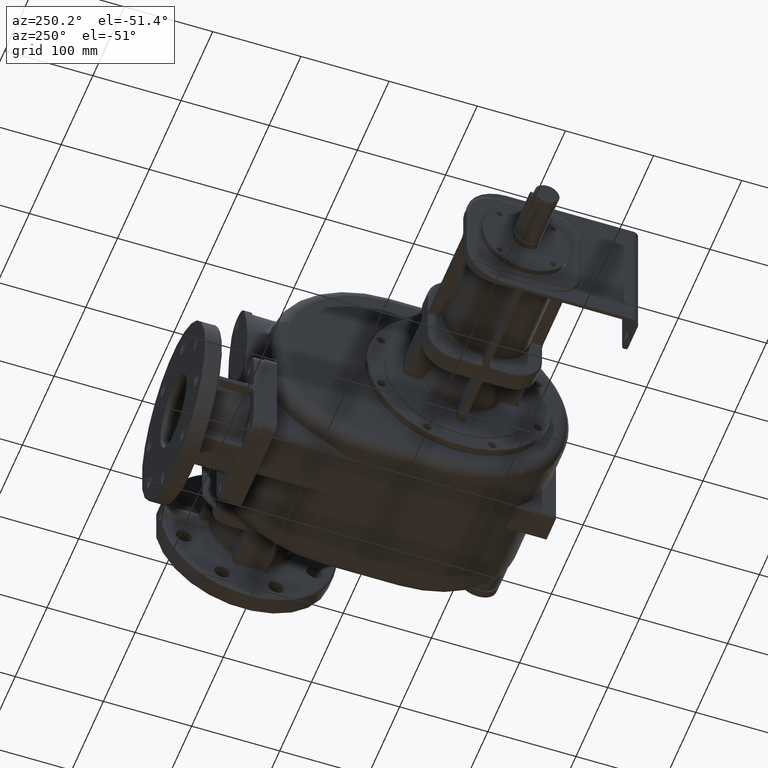
[diagram: clean part render]
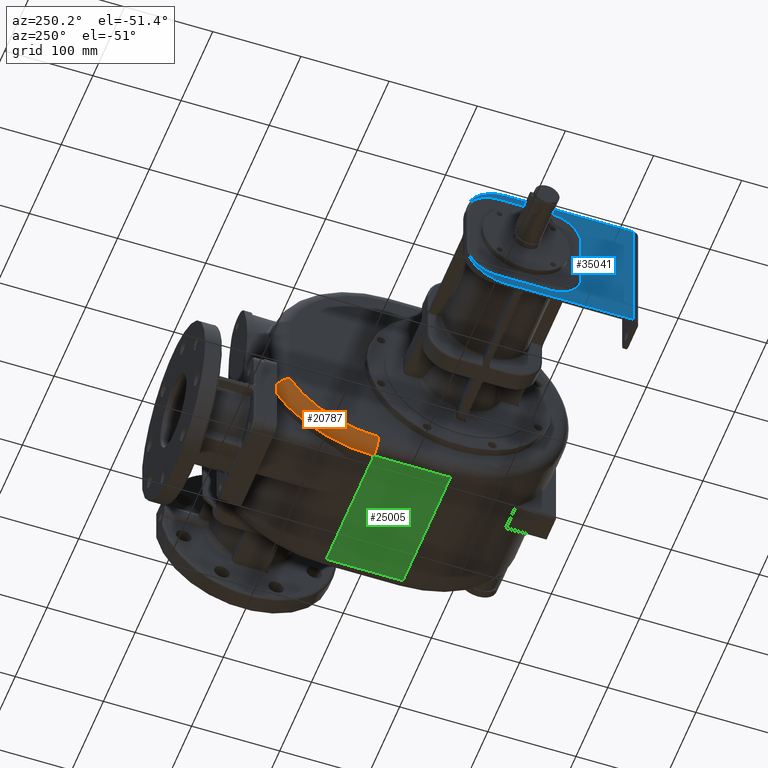
[diagram: same view with three faces highlighted in distinct colors, each labeled with its STEP entity id]
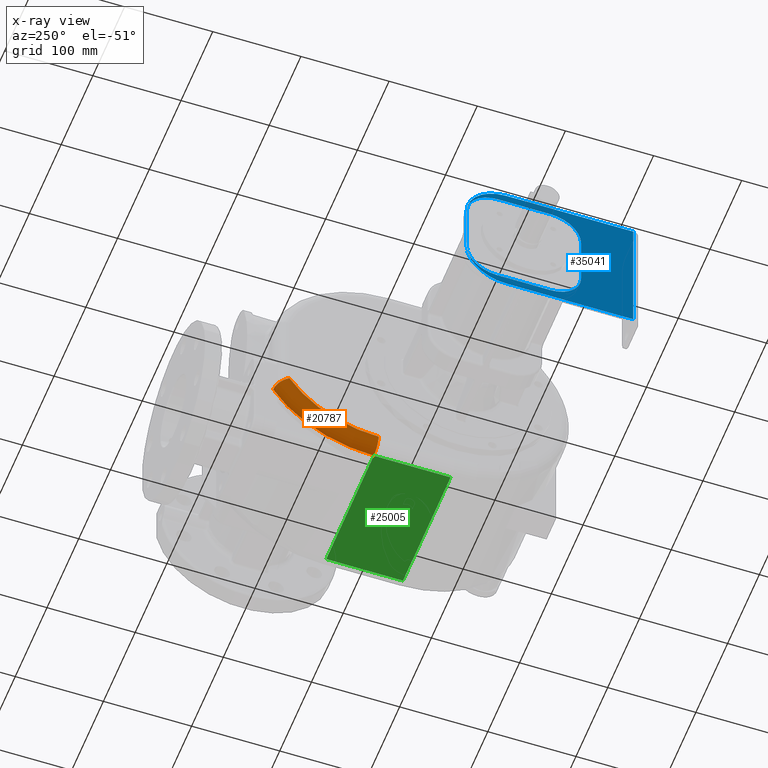
[diagram: x-ray of the same camera — body ghosted, the three highlighted faces saturated]
A machine part, auxiliary view with three faces highlighted in distinct colors.
The next image is the same camera in x-ray (body ghosted, the three faces saturated) — at least one of them is partly hidden behind the body in this view.
Their STEP definitions:

[orange] entity #20787 — the highlighted toroidal blend (fillet) surface has major radius 118 mm and minor (blend) radius 15 mm.
#3449=CARTESIAN_POINT('',(-5.5E1,2.210913863051E2,0.E0));
#3450=DIRECTION('',(-1.E0,0.E0,0.E0));
#3451=DIRECTION('',(0.E0,8.587492103451E-1,-5.123961297001E-1));
#3452=AXIS2_PLACEMENT_3D('',#3449,#3450,#3451);
#3961=CARTESIAN_POINT('',(-7.E1,3.220000000023E2,-6.116736602059E1));
#3962=CARTESIAN_POINT('',(-6.999990488858E1,3.221587981855E2,
-6.125106548358E1));
#3963=CARTESIAN_POINT('',(-6.999361504230E1,3.224741906862E2,
-6.142218686163E1));
#3964=CARTESIAN_POINT('',(-6.996474058901E1,3.229494904947E2,-6.167157147E1));
#3965=CARTESIAN_POINT('',(-6.991684965637E1,3.234219318471E2,
-6.192226006371E1));
#3966=CARTESIAN_POINT('',(-6.984995449886E1,3.238923147292E2,
-6.217151494755E1));
#3967=CARTESIAN_POINT('',(-6.976418426792E1,3.243598895304E2,
-6.241961932331E1));
#3968=CARTESIAN_POINT('',(-6.965964371186E1,3.248243360059E2,
-6.266603398503E1));
#3969=CARTESIAN_POINT('',(-6.953644660095E1,3.252852381668E2,
-6.291044305278E1));
#3970=CARTESIAN_POINT('',(-6.939472511065E1,3.257424574249E2,
-6.315194670540E1));
#3971=CARTESIAN_POINT('',(-6.923463253330E1,3.261952789085E2,
-6.339056456900E1));
#3972=CARTESIAN_POINT('',(-6.905632756985E1,3.266431084064E2,
-6.362616828107E1));
#3973=CARTESIAN_POINT('',(-6.886002922068E1,3.270852186567E2,
-6.385862427627E1));
#3974=CARTESIAN_POINT('',(-6.864601850963E1,3.275208764645E2,
-6.408769387655E1));
#3975=CARTESIAN_POINT('',(-6.841460988818E1,3.279492562497E2,
-6.431334273447E1));
#3976=CARTESIAN_POINT('',(-6.816613840866E1,3.283700548706E2,
-6.453476076083E1));
#3977=CARTESIAN_POINT('',(-6.790088968184E1,3.287829510578E2,
-6.475146018847E1));
#3978=CARTESIAN_POINT('',(-6.761915217163E1,3.291873713430E2,
-6.496340249325E1));
#3979=CARTESIAN_POINT('',(-6.732125339006E1,3.295827820751E2,
-6.517040734086E1));
#3980=CARTESIAN_POINT('',(-6.700760624677E1,3.299685635316E2,
-6.537227709878E1));
#3981=CARTESIAN_POINT('',(-6.667864484750E1,3.303441353442E2,
-6.556880793264E1));
#3982=CARTESIAN_POINT('',(-6.633482285917E1,3.307089506666E2,
-6.575979351358E1));
#3983=CARTESIAN_POINT('',(-6.597659177296E1,3.310628366654E2,
-6.594449845308E1));
#3984=CARTESIAN_POINT('',(-6.560440728488E1,3.314052090681E2,
-6.612293455349E1));
#3985=CARTESIAN_POINT('',(-6.521874706379E1,3.317355837327E2,
-6.629496776691E1));
#3986=CARTESIAN_POINT('',(-6.482010537840E1,3.320534781245E2,
-6.646049542973E1));
#3987=CARTESIAN_POINT('',(-6.440899442058E1,3.323584682017E2,
-6.661934877422E1));
#3988=CARTESIAN_POINT('',(-6.398594133712E1,3.326500756887E2,
-6.677148793551E1));
#3989=CARTESIAN_POINT('',(-6.355145632775E1,3.329282149515E2,
-6.691629723598E1));
#3990=CARTESIAN_POINT('',(-6.310604403764E1,3.331925837943E2,
-6.705357245542E1));
#3991=CARTESIAN_POINT('',(-6.265020446898E1,3.334427645156E2,
-6.718334140331E1));
#3992=CARTESIAN_POINT('',(-6.218453579066E1,3.336783626159E2,
-6.730551788642E1));
#3993=CARTESIAN_POINT('',(-6.170968349814E1,3.338990043319E2,
-6.741999867895E1));
#3994=CARTESIAN_POINT('',(-6.122630463264E1,3.341043625830E2,
-6.752666373315E1));
#3995=CARTESIAN_POINT('',(-6.073506307194E1,3.342941856854E2,
-6.762533028108E1));
#3996=CARTESIAN_POINT('',(-6.023661826161E1,3.344684048407E2,
-6.771557772942E1));
#3997=CARTESIAN_POINT('',(-5.973163661309E1,3.346266791007E2,
-6.779749578690E1));
#3998=CARTESIAN_POINT('',(-5.922076326271E1,3.347687857025E2,
-6.787104734580E1));
#3999=CARTESIAN_POINT('',(-5.870460215056E1,3.348945382608E2,
-6.793620159217E1));
#4000=CARTESIAN_POINT('',(-5.818377308227E1,3.350038003610E2,
-6.799287159097E1));
#4001=CARTESIAN_POINT('',(-5.765888899813E1,3.350964481004E2,
-6.804098410081E1));
#4002=CARTESIAN_POINT('',(-5.713064375670E1,3.351725071011E2,
-6.808023813062E1));
#4003=CARTESIAN_POINT('',(-5.659960799290E1,3.352317951300E2,
-6.811072540447E1));
#4004=CARTESIAN_POINT('',(-5.606701311302E1,3.352741422358E2,
-6.813253579014E1));
#4005=CARTESIAN_POINT('',(-5.553166604337E1,3.352995405580E2,
-6.814568858709E1));
#4006=CARTESIAN_POINT('',(-5.517819159345E1,3.353049978273E2,
-6.814866880432E1));
#4007=CARTESIAN_POINT('',(-5.499898843144E1,3.353049804778E2,
-6.814869787403E1));
#4079=CARTESIAN_POINT('',(-7.E1,2.210913863051E2,0.E0));
#4080=DIRECTION('',(-1.E0,0.E0,0.E0));
#4081=DIRECTION('',(0.E0,8.551583593562E-1,-5.183668396255E-1));
#4082=AXIS2_PLACEMENT_3D('',#4079,#4080,#4081);
#6608=CARTESIAN_POINT('',(-5.5E1,2.210913863051E2,-1.18E2));
#6609=DIRECTION('',(0.E0,-1.E0,0.E0));
#6610=DIRECTION('',(-1.E0,0.E0,0.E0));
#6611=AXIS2_PLACEMENT_3D('',#6608,#6609,#6610);
#13482=CARTESIAN_POINT('',(-7.E1,3.220000000023E2,-6.116736602059E1));
#13484=VERTEX_POINT('',#13482);
#13485=CARTESIAN_POINT('',(-7.E1,2.210913863051E2,-1.18E2));
#13486=VERTEX_POINT('',#13485);
#13487=CARTESIAN_POINT('',(-5.5E1,3.353050312810E2,-6.814868525012E1));
#13488=CARTESIAN_POINT('',(-5.5E1,2.210913863051E2,-1.33E2));
#13489=VERTEX_POINT('',#13487);
#13490=VERTEX_POINT('',#13488);
#20774=CARTESIAN_POINT('',(-5.5E1,2.210913863051E2,0.E0));
#20775=DIRECTION('',(-1.E0,0.E0,0.E0));
#20776=DIRECTION('',(0.E0,9.914213293832E-1,-1.307048110978E-1));
#20777=AXIS2_PLACEMENT_3D('',#20774,#20775,#20776);
#20778=TOROIDAL_SURFACE('',#20777,1.18E2,1.5E1);
#20780=ORIENTED_EDGE('',*,*,#20779,.T.);
#20782=ORIENTED_EDGE('',*,*,#20781,.T.);
#20783=ORIENTED_EDGE('',*,*,#20351,.F.);
#20784=ORIENTED_EDGE('',*,*,#20766,.F.);
#20785=EDGE_LOOP('',(#20780,#20782,#20783,#20784));
#20786=FACE_OUTER_BOUND('',#20785,.F.);
#20787=ADVANCED_FACE('',(#20786),#20778,.T.);
#3453=CIRCLE('',#3452,1.33E2);
#4008=B_SPLINE_CURVE_WITH_KNOTS('',3,(#3961,#3962,#3963,#3964,#3965,#3966,#3967,
#3968,#3969,#3970,#3971,#3972,#3973,#3974,#3975,#3976,#3977,#3978,#3979,#3980,
#3981,#3982,#3983,#3984,#3985,#3986,#3987,#3988,#3989,#3990,#3991,#3992,#3993,
#3994,#3995,#3996,#3997,#3998,#3999,#4000,#4001,#4002,#4003,#4004,#4005,#4006,
#4007),.UNSPECIFIED.,.F.,.F.,(4,1,1,1,1,1,1,1,1,1,1,1,1,1,1,1,1,1,1,1,1,1,1,1,1,
1,1,1,1,1,1,1,1,1,1,1,1,1,1,1,1,1,1,1,4),(0.E0,2.272727272727E-2,
4.545454545455E-2,6.818181818182E-2,9.090909090909E-2,1.136363636364E-1,
1.363636363636E-1,1.590909090909E-1,1.818181818182E-1,2.045454545455E-1,
2.272727272727E-1,2.5E-1,2.727272727273E-1,2.954545454545E-1,3.181818181818E-1,
3.409090909091E-1,3.636363636364E-1,3.863636363636E-1,4.090909090909E-1,
4.318181818182E-1,4.545454545455E-1,4.772727272727E-1,5.E-1,5.227272727273E-1,
5.454545454545E-1,5.681818181818E-1,5.909090909091E-1,6.136363636364E-1,
6.363636363636E-1,6.590909090909E-1,6.818181818182E-1,7.045454545455E-1,
7.272727272727E-1,7.5E-1,7.727272727273E-1,7.954545454545E-1,8.181818181818E-1,
8.409090909091E-1,8.636363636364E-1,8.863636363636E-1,9.090909090909E-1,
9.318181818182E-1,9.545454545455E-1,9.772727272727E-1,1.E0),.UNSPECIFIED.);
#4083=CIRCLE('',#4082,1.18E2);
#6612=CIRCLE('',#6611,1.5E1);
#20351=EDGE_CURVE('',#13489,#13490,#3453,.T.);
#20766=EDGE_CURVE('',#13484,#13489,#4008,.T.);
#20779=EDGE_CURVE('',#13484,#13486,#4083,.T.);
#20781=EDGE_CURVE('',#13486,#13490,#6612,.T.);

[blue] entity #35041 — the highlighted planar face has unit normal (1, 0, 0).
#11767=CARTESIAN_POINT('',(-2.805E2,1.52E2,-3.E1));
#11768=DIRECTION('',(1.E0,0.E0,0.E0));
#11769=DIRECTION('',(0.E0,0.E0,-1.E0));
#11770=AXIS2_PLACEMENT_3D('',#11767,#11768,#11769);
#11772=DIRECTION('',(0.E0,0.E0,1.E0));
#11773=VECTOR('',#11772,6.E1);
#11774=CARTESIAN_POINT('',(-2.805E2,1.97E2,-3.E1));
#11775=LINE('',#11774,#11773);
#11776=CARTESIAN_POINT('',(-2.805E2,1.52E2,3.E1));
#11777=DIRECTION('',(1.E0,0.E0,0.E0));
#11778=DIRECTION('',(0.E0,1.E0,0.E0));
#11779=AXIS2_PLACEMENT_3D('',#11776,#11777,#11778);
#11781=DIRECTION('',(0.E0,-1.E0,0.E0));
#11782=VECTOR('',#11781,1.44E2);
#11783=CARTESIAN_POINT('',(-2.805E2,1.52E2,7.5E1));
#11784=LINE('',#11783,#11782);
#11785=DIRECTION('',(0.E0,1.E0,0.E0));
#11786=VECTOR('',#11785,1.44E2);
#11787=CARTESIAN_POINT('',(-2.805E2,8.E0,-7.5E1));
#11788=LINE('',#11787,#11786);
#11802=DIRECTION('',(0.E0,0.E0,1.E0));
#11803=VECTOR('',#11802,1.5E2);
#11804=CARTESIAN_POINT('',(-2.805E2,8.E0,-7.5E1));
#11805=LINE('',#11804,#11803);
#12009=DIRECTION('',(0.E0,0.E0,1.E0));
#12010=VECTOR('',#12009,6.E1);
#12011=CARTESIAN_POINT('',(-2.805E2,6.717157287525E1,-3.E1));
#12012=LINE('',#12011,#12010);
#12018=CARTESIAN_POINT('',(-2.805E2,1.02E2,-3.E1));
#12019=DIRECTION('',(-1.E0,0.E0,0.E0));
#12020=DIRECTION('',(0.E0,0.E0,-1.E0));
#12021=AXIS2_PLACEMENT_3D('',#12018,#12019,#12020);
#12028=DIRECTION('',(0.E0,-1.E0,0.E0));
#12029=VECTOR('',#12028,6.E1);
#12030=CARTESIAN_POINT('',(-2.805E2,1.62E2,-6.482842712475E1));
#12031=LINE('',#12030,#12029);
#12037=CARTESIAN_POINT('',(-2.805E2,1.62E2,-3.E1));
#12038=DIRECTION('',(-1.E0,0.E0,0.E0));
#12039=DIRECTION('',(0.E0,1.E0,0.E0));
#12040=AXIS2_PLACEMENT_3D('',#12037,#12038,#12039);
#12047=DIRECTION('',(0.E0,0.E0,-1.E0));
#12048=VECTOR('',#12047,6.E1);
#12049=CARTESIAN_POINT('',(-2.805E2,1.968284271247E2,3.E1));
#12050=LINE('',#12049,#12048);
#12056=CARTESIAN_POINT('',(-2.805E2,1.62E2,3.E1));
#12057=DIRECTION('',(-1.E0,0.E0,0.E0));
#12058=DIRECTION('',(0.E0,0.E0,1.E0));
#12059=AXIS2_PLACEMENT_3D('',#12056,#12057,#12058);
#12066=DIRECTION('',(0.E0,1.E0,0.E0));
#12067=VECTOR('',#12066,6.E1);
#12068=CARTESIAN_POINT('',(-2.805E2,1.02E2,6.482842712475E1));
#12069=LINE('',#12068,#12067);
#12075=CARTESIAN_POINT('',(-2.805E2,1.02E2,3.E1));
#12076=DIRECTION('',(-1.E0,0.E0,0.E0));
#12077=DIRECTION('',(0.E0,-1.E0,0.E0));
#12078=AXIS2_PLACEMENT_3D('',#12075,#12076,#12077);
#15581=CARTESIAN_POINT('',(-2.805E2,1.52E2,-7.5E1));
#15583=VERTEX_POINT('',#15581);
#15588=CARTESIAN_POINT('',(-2.805E2,8.E0,-7.5E1));
#15589=VERTEX_POINT('',#15588);
#15590=CARTESIAN_POINT('',(-2.805E2,8.E0,7.5E1));
#15591=VERTEX_POINT('',#15590);
#15592=CARTESIAN_POINT('',(-2.805E2,1.52E2,7.5E1));
#15593=VERTEX_POINT('',#15592);
#15636=CARTESIAN_POINT('',(-2.805E2,1.97E2,-3.E1));
#15637=VERTEX_POINT('',#15636);
#15638=CARTESIAN_POINT('',(-2.805E2,1.97E2,3.E1));
#15639=VERTEX_POINT('',#15638);
#15672=CARTESIAN_POINT('',(-2.805E2,6.717157287525E1,-3.E1));
#15673=CARTESIAN_POINT('',(-2.805E2,6.717157287525E1,3.E1));
#15674=VERTEX_POINT('',#15672);
#15675=VERTEX_POINT('',#15673);
#15676=CARTESIAN_POINT('',(-2.805E2,1.02E2,-6.482842712475E1));
#15677=VERTEX_POINT('',#15676);
#15678=CARTESIAN_POINT('',(-2.805E2,1.62E2,-6.482842712475E1));
#15679=VERTEX_POINT('',#15678);
#15680=CARTESIAN_POINT('',(-2.805E2,1.968284271247E2,-3.E1));
#15681=VERTEX_POINT('',#15680);
#15682=CARTESIAN_POINT('',(-2.805E2,1.968284271247E2,3.E1));
#15683=VERTEX_POINT('',#15682);
#15684=CARTESIAN_POINT('',(-2.805E2,1.62E2,6.482842712475E1));
#15685=VERTEX_POINT('',#15684);
#15686=CARTESIAN_POINT('',(-2.805E2,1.02E2,6.482842712475E1));
#15687=VERTEX_POINT('',#15686);
#35007=CARTESIAN_POINT('',(-2.805E2,1.32E2,-2.751835840123E-14));
#35008=DIRECTION('',(1.E0,0.E0,0.E0));
#35009=DIRECTION('',(0.E0,0.E0,-1.E0));
#35010=AXIS2_PLACEMENT_3D('',#35007,#35008,#35009);
#35011=PLANE('',#35010);
#35012=ORIENTED_EDGE('',*,*,#34999,.T.);
#35013=ORIENTED_EDGE('',*,*,#25524,.T.);
#35014=ORIENTED_EDGE('',*,*,#25582,.T.);
#35016=ORIENTED_EDGE('',*,*,#35015,.T.);
#35018=ORIENTED_EDGE('',*,*,#35017,.F.);
#35020=ORIENTED_EDGE('',*,*,#35019,.T.);
#35021=EDGE_LOOP('',(#35012,#35013,#35014,#35016,#35018,#35020));
#35022=FACE_OUTER_BOUND('',#35021,.F.);
#35024=ORIENTED_EDGE('',*,*,#35023,.T.);
#35026=ORIENTED_EDGE('',*,*,#35025,.T.);
#35028=ORIENTED_EDGE('',*,*,#35027,.T.);
#35030=ORIENTED_EDGE('',*,*,#35029,.T.);
#35032=ORIENTED_EDGE('',*,*,#35031,.T.);
#35034=ORIENTED_EDGE('',*,*,#35033,.T.);
#35036=ORIENTED_EDGE('',*,*,#35035,.T.);
#35038=ORIENTED_EDGE('',*,*,#35037,.T.);
#35039=EDGE_LOOP('',(#35024,#35026,#35028,#35030,#35032,#35034,#35036,#35038));
#35040=FACE_BOUND('',#35039,.F.);
#35041=ADVANCED_FACE('',(#35022,#35040),#35011,.F.);
#11771=CIRCLE('',#11770,4.5E1);
#11780=CIRCLE('',#11779,4.5E1);
#12022=CIRCLE('',#12021,3.482842712475E1);
#12041=CIRCLE('',#12040,3.482842712475E1);
#12060=CIRCLE('',#12059,3.482842712475E1);
#12079=CIRCLE('',#12078,3.482842712475E1);
#25524=EDGE_CURVE('',#15637,#15639,#11775,.T.);
#25582=EDGE_CURVE('',#15639,#15593,#11780,.T.);
#34999=EDGE_CURVE('',#15583,#15637,#11771,.T.);
#35015=EDGE_CURVE('',#15593,#15591,#11784,.T.);
#35017=EDGE_CURVE('',#15589,#15591,#11805,.T.);
#35019=EDGE_CURVE('',#15589,#15583,#11788,.T.);
#35023=EDGE_CURVE('',#15674,#15675,#12012,.T.);
#35025=EDGE_CURVE('',#15675,#15687,#12079,.T.);
#35027=EDGE_CURVE('',#15687,#15685,#12069,.T.);
#35029=EDGE_CURVE('',#15685,#15683,#12060,.T.);
#35031=EDGE_CURVE('',#15683,#15681,#12050,.T.);
#35033=EDGE_CURVE('',#15681,#15679,#12041,.T.);
#35035=EDGE_CURVE('',#15679,#15677,#12031,.T.);
#35037=EDGE_CURVE('',#15677,#15674,#12022,.T.);

[green] entity #25005 — the highlighted planar face has unit normal (0, 0, -1).
#6581=DIRECTION('',(1.E0,-6.385410718697E-14,0.E0));
#6582=VECTOR('',#6581,1.5E2);
#6583=CARTESIAN_POINT('',(-5.5E1,1.34E2,-1.33E2));
#6584=LINE('',#6583,#6582);
#6613=DIRECTION('',(0.E0,-1.E0,0.E0));
#6614=VECTOR('',#6613,8.709138630505E1);
#6615=CARTESIAN_POINT('',(-5.5E1,2.210913863051E2,-1.33E2));
#6616=LINE('',#6615,#6614);
#6617=DIRECTION('',(0.E0,1.E0,0.E0));
#6618=VECTOR('',#6617,8.709138630482E1);
#6619=CARTESIAN_POINT('',(9.5E1,1.34E2,-1.33E2));
#6620=LINE('',#6619,#6618);
#6621=DIRECTION('',(1.E0,-1.649217059215E-12,0.E0));
#6622=VECTOR('',#6621,1.5E2);
#6623=CARTESIAN_POINT('',(-5.5E1,2.210913863051E2,-1.33E2));
#6624=LINE('',#6623,#6622);
#13447=CARTESIAN_POINT('',(9.5E1,2.210913863051E2,-1.33E2));
#13449=VERTEX_POINT('',#13447);
#13457=CARTESIAN_POINT('',(9.5E1,1.34E2,-1.33E2));
#13458=VERTEX_POINT('',#13457);
#13488=CARTESIAN_POINT('',(-5.5E1,2.210913863051E2,-1.33E2));
#13490=VERTEX_POINT('',#13488);
#13493=CARTESIAN_POINT('',(-5.5E1,1.34E2,-1.33E2));
#13494=VERTEX_POINT('',#13493);
#24994=CARTESIAN_POINT('',(-7.E1,2.210913863051E2,-1.33E2));
#24995=DIRECTION('',(0.E0,0.E0,-1.E0));
#24996=DIRECTION('',(0.E0,-1.E0,0.E0));
#24997=AXIS2_PLACEMENT_3D('',#24994,#24995,#24996);
#24998=PLANE('',#24997);
#24999=ORIENTED_EDGE('',*,*,#24988,.T.);
#25000=ORIENTED_EDGE('',*,*,#24953,.T.);
#25001=ORIENTED_EDGE('',*,*,#20319,.T.);
#25002=ORIENTED_EDGE('',*,*,#20353,.F.);
#25003=EDGE_LOOP('',(#24999,#25000,#25001,#25002));
#25004=FACE_OUTER_BOUND('',#25003,.F.);
#25005=ADVANCED_FACE('',(#25004),#24998,.T.);
#20319=EDGE_CURVE('',#13458,#13449,#6620,.T.);
#20353=EDGE_CURVE('',#13490,#13449,#6624,.T.);
#24953=EDGE_CURVE('',#13494,#13458,#6584,.T.);
#24988=EDGE_CURVE('',#13490,#13494,#6616,.T.);